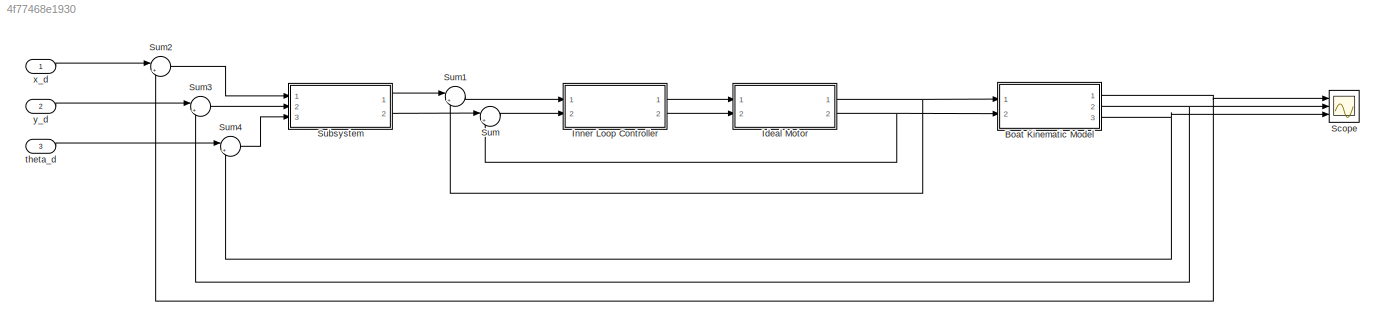
MODEL slx_4f77468e1930
KIND model
CONFIG AbsTol = auto
CONFIG EnableMultiTasking = off
CONFIG FixedStep = auto
CONFIG MaxStep = auto
CONFIG MinStep = auto
CONFIG RelTol = 1e-3
CONFIG SampleTimeConstraint = Unconstrained
CONFIG Solver = VariableStepAuto
CONFIG SolverName = VariableStepAuto
CONFIG StartTime = 0.0
CONFIG StopTime = 10.0
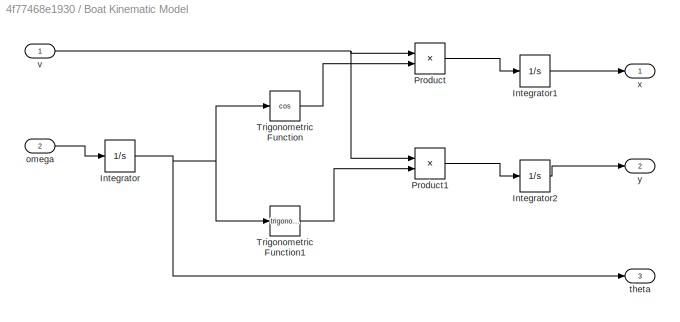
BLOCK [SubSystem] Boat Kinematic Model
  Ports = [2, 3]
  RequestExecContextInheritance = off
  Variant = off
BLOCK [Integrator] Boat Kinematic Model/Integrator
  Ports = [1, 1]
BLOCK [Integrator] Boat Kinematic Model/Integrator1
  Ports = [1, 1]
BLOCK [Integrator] Boat Kinematic Model/Integrator2
  Ports = [1, 1]
BLOCK [Product] Boat Kinematic Model/Product
  InputSameDT = off
  OutDataTypeStr = Inherit: Inherit via internal rule
  Ports = [2, 1]
  RndMeth = Floor
  SaturateOnIntegerOverflow = off
BLOCK [Product] Boat Kinematic Model/Product1
  InputSameDT = off
  OutDataTypeStr = Inherit: Inherit via internal rule
  Ports = [2, 1]
  RndMeth = Floor
  SaturateOnIntegerOverflow = off
BLOCK [Trigonometry] Boat Kinematic Model/Trigonometric Function
  Operator = cos
  Ports = [1, 1]
BLOCK [Trigonometry] Boat Kinematic Model/Trigonometric Function1
  Ports = [1, 1]
BLOCK [Inport] Boat Kinematic Model/omega
  IconDisplay = Port number
  Port = 2
BLOCK [Outport] Boat Kinematic Model/theta
  IconDisplay = Port number
  Port = 3
BLOCK [Inport] Boat Kinematic Model/v
  IconDisplay = Port number
BLOCK [Outport] Boat Kinematic Model/x
  IconDisplay = Port number
BLOCK [Outport] Boat Kinematic Model/y
  IconDisplay = Port number
  Port = 2
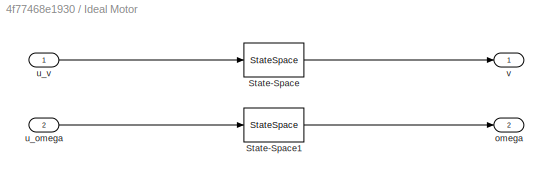
BLOCK [SubSystem] Ideal Motor
  Ports = [2, 2]
  RequestExecContextInheritance = off
  Variant = off
BLOCK [StateSpace] Ideal Motor/State-Space
  A = -Kv./M
  B = Km./M
  D = 0
  Ports = [1, 1]
  X0 = 0
BLOCK [StateSpace] Ideal Motor/State-Space1
  A = -K_omega./J
  B = Kd./J
  ContinuousStateAttributes = 'omega'
  D = 0
  Ports = [1, 1]
  X0 = 0
BLOCK [Outport] Ideal Motor/omega
  IconDisplay = Port number
  Port = 2
BLOCK [Inport] Ideal Motor/u_omega
  IconDisplay = Port number
  Port = 2
BLOCK [Inport] Ideal Motor/u_v
  IconDisplay = Port number
BLOCK [Outport] Ideal Motor/v
  IconDisplay = Port number
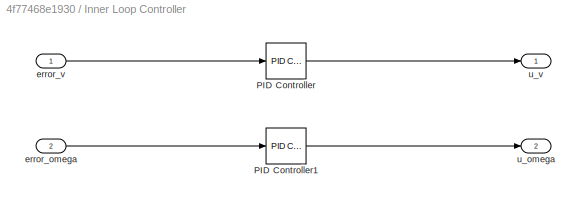
BLOCK [SubSystem] Inner Loop Controller 
  Ports = [2, 2]
  RequestExecContextInheritance = off
  Variant = off
BLOCK [Reference] Inner Loop Controller /PID Controller  REF=simulink/Continuous/PID Controller
  Ports = [1, 1]
  SourceBlock = simulink/Continuous/PID Controller
  SourceProductBaseCode = SL
  SourceProductName = Simulink
  SourceType = PID 1dof
BLOCK [Reference] Inner Loop Controller /PID Controller1  REF=simulink/Continuous/PID Controller
  Ports = [1, 1]
  SourceBlock = simulink/Continuous/PID Controller
  SourceProductBaseCode = SL
  SourceProductName = Simulink
  SourceType = PID 1dof
BLOCK [Inport] Inner Loop Controller /error_omega
  IconDisplay = Port number
  Port = 2
BLOCK [Inport] Inner Loop Controller /error_v
  IconDisplay = Port number
BLOCK [Outport] Inner Loop Controller /u_omega
  IconDisplay = Port number
  Port = 2
BLOCK [Outport] Inner Loop Controller /u_v
  IconDisplay = Port number
BLOCK [Scope] Scope
  NumInputPorts = 3
  Ports = [3]
  ScopeSpecificationString = Simulink.scopes.TimeScopeBlockCfg('CurrentConfiguration', extmgr.ConfigurationSet(extmgr.Configuration('Core','General UI',true),extmgr.Configuration('Core','Source UI',true),extmgr.Configuration('Sources','WiredSimulink',true),extmgr.Configuration('Visuals','Time Domain',true),extmgr.Configuration('Tools','Plot Navigation',true),extmgr.Configuration('Tools','Measurements',true,'Version','2017a'))...<+19ch>
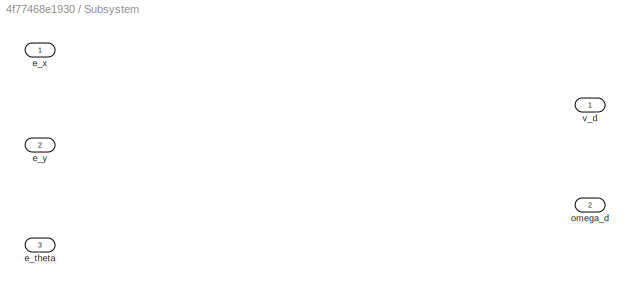
BLOCK [SubSystem] Subsystem
  Ports = [3, 2]
  RequestExecContextInheritance = off
  Variant = off
BLOCK [Inport] Subsystem/e_theta
  IconDisplay = Port number
  Port = 3
BLOCK [Inport] Subsystem/e_x
  IconDisplay = Port number
BLOCK [Inport] Subsystem/e_y
  IconDisplay = Port number
  Port = 2
BLOCK [Outport] Subsystem/omega_d
  IconDisplay = Port number
  Port = 2
BLOCK [Outport] Subsystem/v_d
  IconDisplay = Port number
BLOCK [Sum] Sum
  IconShape = round
  InputSameDT = off
  Inputs = |+-
  OutDataTypeStr = Inherit: Inherit via internal rule
  Ports = [2, 1]
  SaturateOnIntegerOverflow = off
BLOCK [Sum] Sum1
  IconShape = round
  InputSameDT = off
  Inputs = |+-
  OutDataTypeStr = Inherit: Inherit via internal rule
  Ports = [2, 1]
  SaturateOnIntegerOverflow = off
BLOCK [Sum] Sum2
  IconShape = round
  InputSameDT = off
  Inputs = |+-
  OutDataTypeStr = Inherit: Inherit via internal rule
  Ports = [2, 1]
  SaturateOnIntegerOverflow = off
BLOCK [Sum] Sum3
  IconShape = round
  InputSameDT = off
  Inputs = |+-
  OutDataTypeStr = Inherit: Inherit via internal rule
  Ports = [2, 1]
  SaturateOnIntegerOverflow = off
BLOCK [Sum] Sum4
  IconShape = round
  InputSameDT = off
  Inputs = |+-
  OutDataTypeStr = Inherit: Inherit via internal rule
  Ports = [2, 1]
  SaturateOnIntegerOverflow = off
BLOCK [Inport] theta_d
  IconDisplay = Port number
  Port = 3
BLOCK [Inport] x_d
  IconDisplay = Port number
BLOCK [Inport] y_d
  IconDisplay = Port number
  Port = 2
LINE Boat Kinematic Model/Integrator1:1 -> Boat Kinematic Model/x:1
LINE Boat Kinematic Model/Integrator2:1 -> Boat Kinematic Model/y:1
NET Boat Kinematic Model/Integrator:1 -> Boat Kinematic Model/Trigonometric Function1:1, Boat Kinematic Model/Trigonometric Function:1, Boat Kinematic Model/theta:1
LINE Boat Kinematic Model/Product1:1 -> Boat Kinematic Model/Integrator2:1
LINE Boat Kinematic Model/Product:1 -> Boat Kinematic Model/Integrator1:1
LINE Boat Kinematic Model/Trigonometric Function1:1 -> Boat Kinematic Model/Product1:2
LINE Boat Kinematic Model/Trigonometric Function:1 -> Boat Kinematic Model/Product:2
LINE Boat Kinematic Model/omega:1 -> Boat Kinematic Model/Integrator:1
NET Boat Kinematic Model/v:1 -> Boat Kinematic Model/Product1:1, Boat Kinematic Model/Product:1
NET Boat Kinematic Model:1 -> Scope:1, Sum2:2
NET Boat Kinematic Model:2 -> Scope:2, Sum3:2
NET Boat Kinematic Model:3 -> Scope:3, Sum4:2
LINE Ideal Motor/State-Space1:1 -> Ideal Motor/omega:1
LINE Ideal Motor/State-Space:1 -> Ideal Motor/v:1
LINE Ideal Motor/u_omega:1 -> Ideal Motor/State-Space1:1
LINE Ideal Motor/u_v:1 -> Ideal Motor/State-Space:1
NET Ideal Motor:1 -> Boat Kinematic Model:1, Sum1:2
NET Ideal Motor:2 -> Boat Kinematic Model:2, Sum:2
LINE Inner Loop Controller /PID Controller1:1 -> Inner Loop Controller /u_omega:1
LINE Inner Loop Controller /PID Controller:1 -> Inner Loop Controller /u_v:1
LINE Inner Loop Controller /error_omega:1 -> Inner Loop Controller /PID Controller1:1
LINE Inner Loop Controller /error_v:1 -> Inner Loop Controller /PID Controller:1
LINE Inner Loop Controller :1 -> Ideal Motor:1
LINE Inner Loop Controller :2 -> Ideal Motor:2
LINE Subsystem:1 -> Sum1:1
LINE Subsystem:2 -> Sum:1
LINE Sum1:1 -> Inner Loop Controller :1
LINE Sum2:1 -> Subsystem:1
LINE Sum3:1 -> Subsystem:2
LINE Sum4:1 -> Subsystem:3
LINE Sum:1 -> Inner Loop Controller :2
LINE theta_d:1 -> Sum4:1
LINE x_d:1 -> Sum2:1
LINE y_d:1 -> Sum3:1
note: NET lines group one-source signal fan-out (src -> all destinations, sorted); 1:1 wires keep LINE
